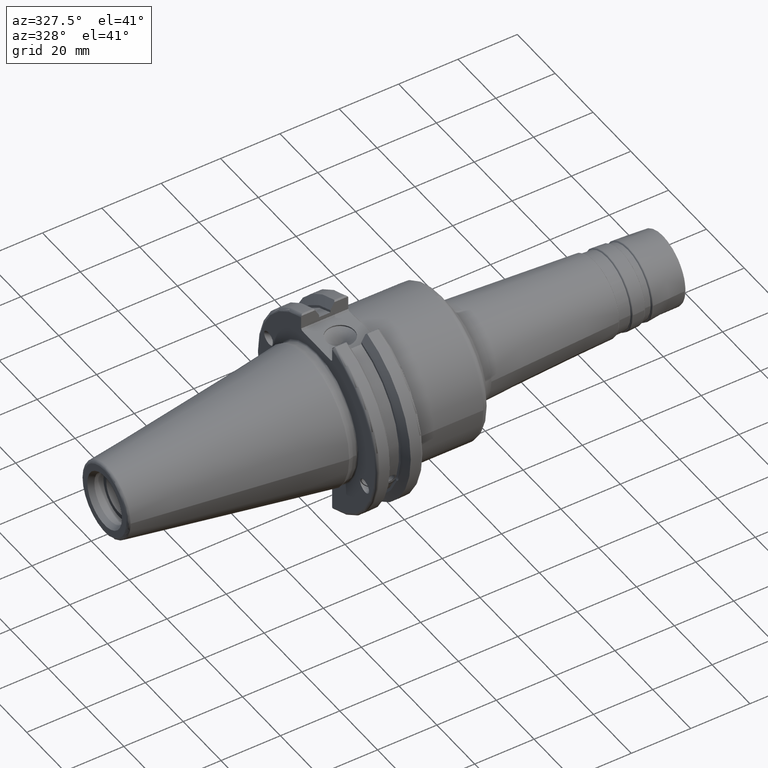
[diagram: clean part render]
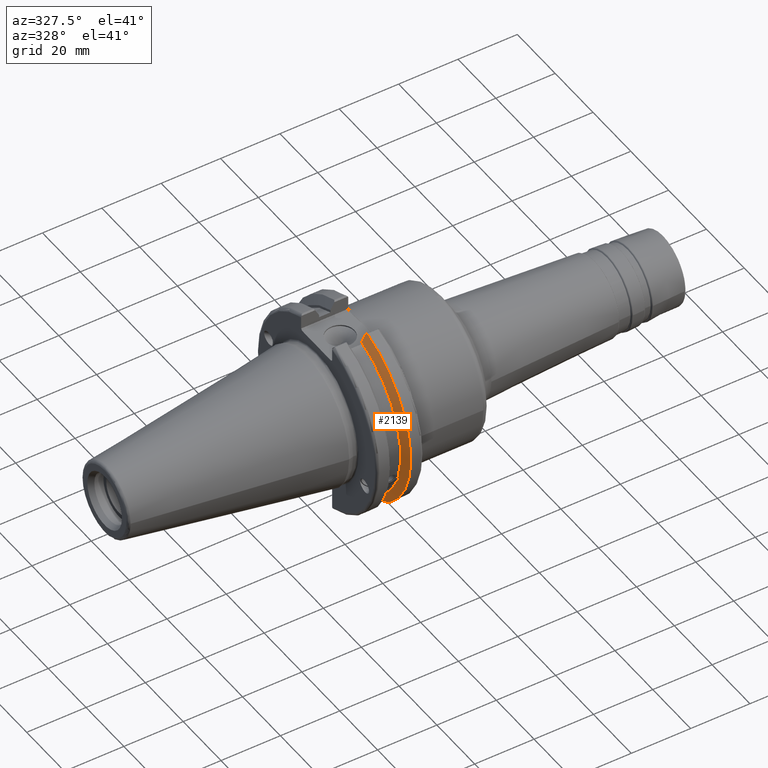
[diagram: same view with one face highlighted and labeled with its STEP entity id]
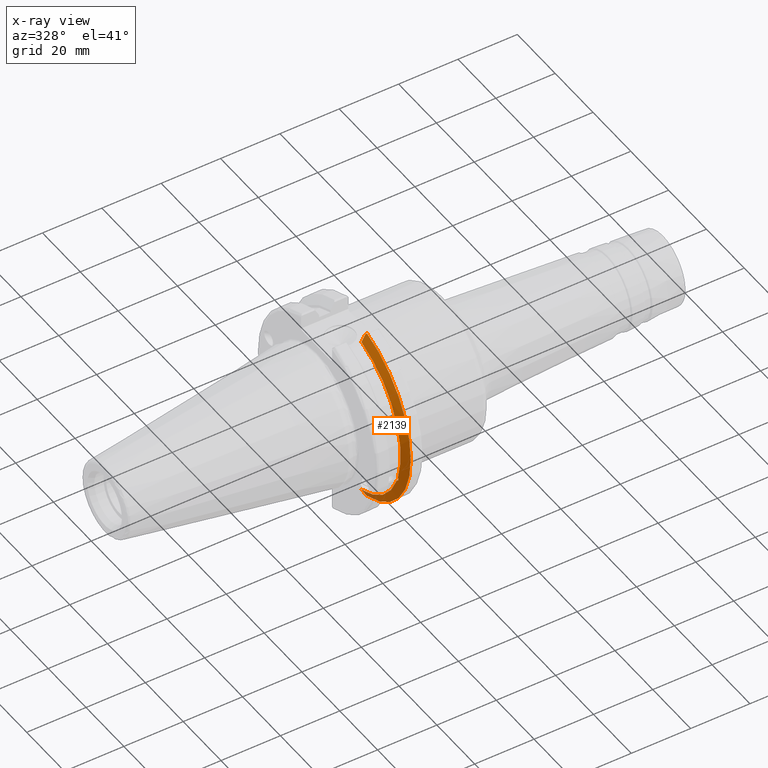
[diagram: x-ray of the same camera — body ghosted, the highlighted face saturated]
A machine part, auxiliary view. The second image highlights one B-rep face of the part: STEP entity #2139.
The next image is the same camera in x-ray: the body ghosted, the highlighted face saturated — about 3% of this face is hidden behind the body in this view.
In plain terms, the highlighted conical surface has half-angle 60 deg.
Its self-contained STEP definition (entity closure, byte-faithful):
#15=(
BOUNDED_CURVE()
B_SPLINE_CURVE(2,(#3750,#3751,#3752),.UNSPECIFIED.,.F.,.F.)
B_SPLINE_CURVE_WITH_KNOTS((3,3),(0.,0.276549142795512),.UNSPECIFIED.)
CURVE()
GEOMETRIC_REPRESENTATION_ITEM()
RATIONAL_B_SPLINE_CURVE((1.,1.00095203904184,1.00031614445102))
REPRESENTATION_ITEM('')
);
#16=(
BOUNDED_CURVE()
B_SPLINE_CURVE(2,(#3754,#3755,#3756),.UNSPECIFIED.,.F.,.F.)
B_SPLINE_CURVE_WITH_KNOTS((3,3),(0.,0.0639048713675663),.UNSPECIFIED.)
CURVE()
GEOMETRIC_REPRESENTATION_ITEM()
RATIONAL_B_SPLINE_CURVE((1.,1.00028444218286,1.00047644010578))
REPRESENTATION_ITEM('')
);
#17=(
BOUNDED_CURVE()
B_SPLINE_CURVE(2,(#3760,#3761,#3762),.UNSPECIFIED.,.F.,.F.)
B_SPLINE_CURVE_WITH_KNOTS((3,3),(0.329353533631206,0.393258405001023),
 .UNSPECIFIED.)
CURVE()
GEOMETRIC_REPRESENTATION_ITEM()
RATIONAL_B_SPLINE_CURVE((1.00047644010579,1.00028444218287,1.))
REPRESENTATION_ITEM('')
);
#18=(
BOUNDED_CURVE()
B_SPLINE_CURVE(2,(#3764,#3765,#3766),.UNSPECIFIED.,.F.,.F.)
B_SPLINE_CURVE_WITH_KNOTS((3,3),(0.0550586467393779,0.331607789535852),
 .UNSPECIFIED.)
CURVE()
GEOMETRIC_REPRESENTATION_ITEM()
RATIONAL_B_SPLINE_CURVE((1.00031614444922,1.00095203903643,1.))
REPRESENTATION_ITEM('')
);
#126=B_SPLINE_CURVE_WITH_KNOTS('',3,(#3652,#3653,#3654,#3655,#3656,#3657,
#3658,#3659),.UNSPECIFIED.,.F.,.F.,(4,2,2,4),(0.451995700189024,0.464547828547662,
0.504528771685167,0.544509714822672),.UNSPECIFIED.);
#130=B_SPLINE_CURVE_WITH_KNOTS('',3,(#3714,#3715,#3716,#3717,#3718,#3719,
#3720,#3721),.UNSPECIFIED.,.F.,.F.,(4,2,2,4),(0.544509714822672,0.584490657960177,
0.624471601097683,0.637023729456322),.UNSPECIFIED.);
#228=FACE_OUTER_BOUND('',#343,.T.);
#343=EDGE_LOOP('',(#1696,#1697,#1698,#1699,#1700,#1701,#1702,#1703,#1704));
#727=CIRCLE('',#2388,28.9593772964944);
#728=CIRCLE('',#2389,31.75);
#729=CIRCLE('',#2390,28.9593772964944);
#906=VERTEX_POINT('',#3649);
#907=VERTEX_POINT('',#3651);
#914=VERTEX_POINT('',#3712);
#923=VERTEX_POINT('',#3747);
#924=VERTEX_POINT('',#3749);
#925=VERTEX_POINT('',#3753);
#926=VERTEX_POINT('',#3757);
#927=VERTEX_POINT('',#3759);
#928=VERTEX_POINT('',#3763);
#1188=EDGE_CURVE('',#907,#906,#126,.T.);
#1196=EDGE_CURVE('',#906,#914,#130,.T.);
#1208=EDGE_CURVE('',#914,#923,#727,.T.);
#1209=EDGE_CURVE('',#923,#924,#15,.T.);
#1210=EDGE_CURVE('',#925,#924,#16,.T.);
#1211=EDGE_CURVE('',#926,#925,#728,.T.);
#1212=EDGE_CURVE('',#927,#926,#17,.T.);
#1213=EDGE_CURVE('',#927,#928,#18,.T.);
#1214=EDGE_CURVE('',#928,#907,#729,.T.);
#1696=ORIENTED_EDGE('',*,*,#1188,.T.);
#1697=ORIENTED_EDGE('',*,*,#1196,.T.);
#1698=ORIENTED_EDGE('',*,*,#1208,.T.);
#1699=ORIENTED_EDGE('',*,*,#1209,.T.);
#1700=ORIENTED_EDGE('',*,*,#1210,.F.);
#1701=ORIENTED_EDGE('',*,*,#1211,.F.);
#1702=ORIENTED_EDGE('',*,*,#1212,.F.);
#1703=ORIENTED_EDGE('',*,*,#1213,.T.);
#1704=ORIENTED_EDGE('',*,*,#1214,.T.);
#2084=CONICAL_SURFACE('',#2387,30.3546886482472,1.0471975511966);
#2139=ADVANCED_FACE('',(#228),#2084,.T.);
#2387=AXIS2_PLACEMENT_3D('',#3746,#2895,#2896);
#2388=AXIS2_PLACEMENT_3D('',#3748,#2897,#2898);
#2389=AXIS2_PLACEMENT_3D('',#3758,#2899,#2900);
#2390=AXIS2_PLACEMENT_3D('',#3767,#2901,#2902);
#2895=DIRECTION('center_axis',(1.,0.,0.));
#2896=DIRECTION('ref_axis',(0.,-1.,-1.22464679914735E-16));
#2897=DIRECTION('center_axis',(1.,0.,0.));
#2898=DIRECTION('ref_axis',(0.,0.,-1.));
#2899=DIRECTION('center_axis',(1.,0.,0.));
#2900=DIRECTION('ref_axis',(0.,0.,-1.));
#2901=DIRECTION('center_axis',(1.,0.,0.));
#2902=DIRECTION('ref_axis',(0.,0.,-1.));
#3649=CARTESIAN_POINT('',(13.2341,-27.51401829017,-10.0142836826778));
#3651=CARTESIAN_POINT('',(13.0491,-27.4956274489925,-9.09043478536245));
#3652=CARTESIAN_POINT('Ctrl Pts',(13.0491,-27.4956274489925,-9.09043478536245));
#3653=CARTESIAN_POINT('Ctrl Pts',(13.0632204071996,-27.5087667900418,-9.12860597076217));
#3654=CARTESIAN_POINT('Ctrl Pts',(13.0766929817857,-27.5206055003513,-9.16696618806877));
#3655=CARTESIAN_POINT('Ctrl Pts',(13.130081441159,-27.5642934663232,-9.32791534028656));
#3656=CARTESIAN_POINT('Ctrl Pts',(13.1682197084175,-27.5867382255984,-9.46717946402648));
#3657=CARTESIAN_POINT('Ctrl Pts',(13.2204106446058,-27.5847569104122,-9.74771639360671));
#3658=CARTESIAN_POINT('Ctrl Pts',(13.2341,-27.559599249844,-9.8890510252165));
#3659=CARTESIAN_POINT('Ctrl Pts',(13.2341,-27.51401829017,-10.0142836826777));
#3712=CARTESIAN_POINT('',(13.0491,-26.9060914640648,-10.7101715919071));
#3714=CARTESIAN_POINT('Ctrl Pts',(13.2341,-27.51401829017,-10.0142836826777));
#3715=CARTESIAN_POINT('Ctrl Pts',(13.2341,-27.4684373304961,-10.139516340139));
#3716=CARTESIAN_POINT('Ctrl Pts',(13.2204106446058,-27.3968610665578,-10.2639559818059));
#3717=CARTESIAN_POINT('Ctrl Pts',(13.1682197084175,-27.2180531796526,-10.4801333026531));
#3718=CARTESIAN_POINT('Ctrl Pts',(13.130081441159,-27.1113422433189,-10.5723885976054));
#3719=CARTESIAN_POINT('Ctrl Pts',(13.0766929817857,-26.9744191989197,-10.6676007180673));
#3720=CARTESIAN_POINT('Ctrl Pts',(13.0632204071996,-26.9406927482839,-10.6893765730703));
#3721=CARTESIAN_POINT('Ctrl Pts',(13.0491,-26.9060914640648,-10.7101715919071));
#3746=CARTESIAN_POINT('Origin',(13.8546833845378,0.,0.));
#3747=CARTESIAN_POINT('',(13.0491,-8.19,-27.7771386827498));
#3748=CARTESIAN_POINT('Origin',(13.0491,0.,0.));
#3749=CARTESIAN_POINT('',(14.3815146964874,-8.19,-30.1755016258903));
#3750=CARTESIAN_POINT('Ctrl Pts',(13.0491,-8.19,-27.7771386827498));
#3751=CARTESIAN_POINT('Ctrl Pts',(13.68773643849,-8.19,-28.9303689539956));
#3752=CARTESIAN_POINT('Ctrl Pts',(14.3815146964874,-8.19,-30.1755016258903));
#3753=CARTESIAN_POINT('',(14.6602667690756,-8.67204822802686,-30.5427254764662));
#3754=CARTESIAN_POINT('Ctrl Pts',(14.6602667690756,-8.67204822802687,-30.5427254764662));
#3755=CARTESIAN_POINT('Ctrl Pts',(14.5192085187837,-8.42917748262644,-30.357706789263));
#3756=CARTESIAN_POINT('Ctrl Pts',(14.3815146964874,-8.19,-30.1755016258903));
#3757=CARTESIAN_POINT('',(14.6602667690756,-8.67204822802685,30.5427254764662));
#3758=CARTESIAN_POINT('Origin',(14.6602667690756,0.,0.));
#3759=CARTESIAN_POINT('',(14.3815146964874,-8.19,30.1755016258903));
#3760=CARTESIAN_POINT('Ctrl Pts',(14.3815146964874,-8.19,30.1755016258903));
#3761=CARTESIAN_POINT('Ctrl Pts',(14.5192085187884,-8.42917748263465,30.3577067892692));
#3762=CARTESIAN_POINT('Ctrl Pts',(14.6602667690756,-8.67204822802686,30.5427254764662));
#3763=CARTESIAN_POINT('',(13.0491,-8.19,27.7771386827498));
#3764=CARTESIAN_POINT('Ctrl Pts',(14.3815146964874,-8.19,30.1755016258903));
#3765=CARTESIAN_POINT('Ctrl Pts',(13.687736438474,-8.19,28.9303689539668));
#3766=CARTESIAN_POINT('Ctrl Pts',(13.0491,-8.19,27.7771386827498));
#3767=CARTESIAN_POINT('Origin',(13.0491,0.,0.));